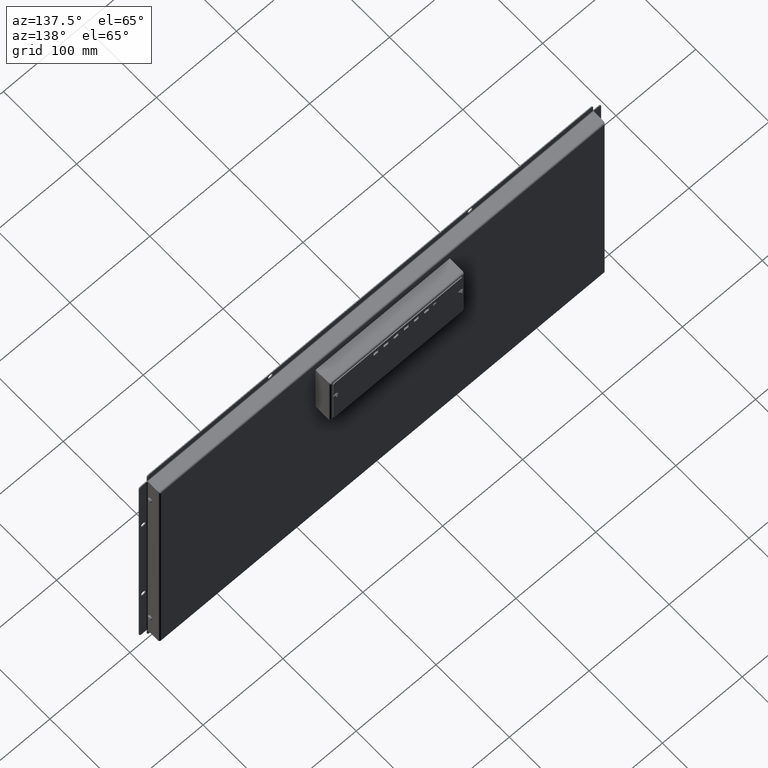
[diagram: clean part render]
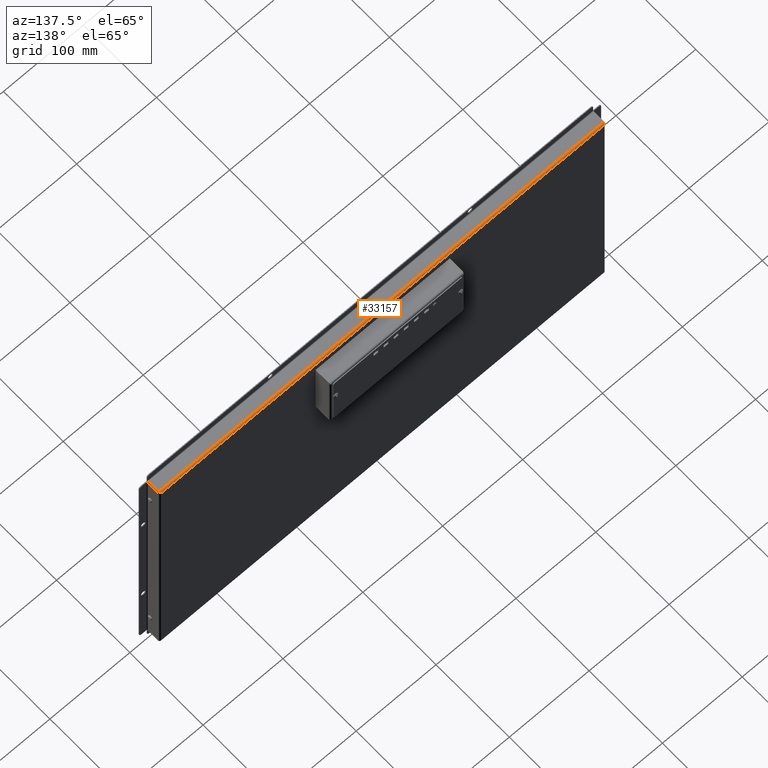
[diagram: same view with one face highlighted and labeled with its STEP entity id]
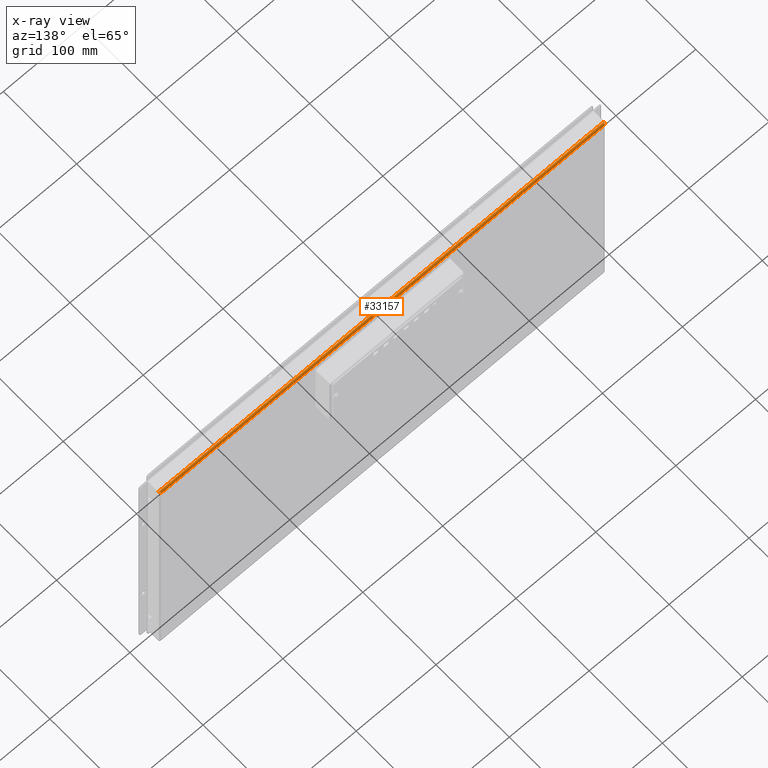
[diagram: x-ray of the same camera — body ghosted, the highlighted face saturated]
A machine part, auxiliary view. The second image highlights one B-rep face of the part: STEP entity #33157.
The next image is the same camera in x-ray: the body ghosted, the highlighted face saturated — about 0% of this face is hidden behind the body in this view.
In plain terms, the highlighted cylindrical surface (edge-blend (fillet) strip) has radius 2 mm, axis along (1, -0, -0).
Its self-contained STEP definition (entity closure, byte-faithful):
#369=B_SPLINE_CURVE_WITH_KNOTS('',3,(#48829,#48830,#48831,#48832,#48833,
#48834,#48835),.UNSPECIFIED.,.F.,.F.,(4,3,4),(-1.,-0.571428571428569,0.),
 .UNSPECIFIED.);
#370=B_SPLINE_CURVE_WITH_KNOTS('',3,(#48838,#48839,#48840,#48841,#48842,
#48843,#48844),.UNSPECIFIED.,.F.,.F.,(4,3,4),(-1.,-0.571428571428571,0.),
 .UNSPECIFIED.);
#786=CYLINDRICAL_SURFACE('',#35670,2.00000000000001);
#1754=FACE_OUTER_BOUND('',#3659,.T.);
#3659=EDGE_LOOP('',(#22094,#22095,#22096,#22097));
#5962=LINE('',#48836,#9115);
#5963=LINE('',#48845,#9116);
#9115=VECTOR('',#39506,10.);
#9116=VECTOR('',#39507,10.);
#13565=VERTEX_POINT('',#48747);
#13585=VERTEX_POINT('',#48827);
#13586=VERTEX_POINT('',#48828);
#13587=VERTEX_POINT('',#48837);
#16929=EDGE_CURVE('',#13585,#13586,#369,.T.);
#16930=EDGE_CURVE('',#13565,#13585,#5962,.T.);
#16931=EDGE_CURVE('',#13565,#13587,#370,.T.);
#16932=EDGE_CURVE('',#13586,#13587,#5963,.T.);
#22094=ORIENTED_EDGE('',*,*,#16929,.F.);
#22095=ORIENTED_EDGE('',*,*,#16930,.F.);
#22096=ORIENTED_EDGE('',*,*,#16931,.T.);
#22097=ORIENTED_EDGE('',*,*,#16932,.F.);
#33157=ADVANCED_FACE('',(#1754),#786,.T.);
#35670=AXIS2_PLACEMENT_3D('',#48826,#39504,#39505);
#39504=DIRECTION('center_axis',(-1.,-3.83386368215881E-16,0.));
#39505=DIRECTION('ref_axis',(0.,3.39652504009254E-14,1.));
#39506=DIRECTION('',(1.,3.84474391424399E-16,-2.50587048754145E-32));
#39507=DIRECTION('',(-1.,-3.83386368215881E-16,0.));
#48747=CARTESIAN_POINT('',(-279.,162.6,-1.0000000000001));
#48826=CARTESIAN_POINT('Origin',(-138.5,160.6,-1.));
#48827=CARTESIAN_POINT('',(279.,162.6,-1.00000000000017));
#48828=CARTESIAN_POINT('',(277.,160.6,1.));
#48829=CARTESIAN_POINT('Ctrl Pts',(279.,162.6,-1.00000000000017));
#48830=CARTESIAN_POINT('Ctrl Pts',(278.714285714299,162.6,-0.551201049486791));
#48831=CARTESIAN_POINT('Ctrl Pts',(278.428571428582,162.443270290567,-0.10164678766964));
#48832=CARTESIAN_POINT('Ctrl Pts',(278.142857142865,162.163443340366,0.247489728209969));
#48833=CARTESIAN_POINT('Ctrl Pts',(277.76190476191,161.790340740097,0.71300508271611));
#48834=CARTESIAN_POINT('Ctrl Pts',(277.380952380954,161.198398600685,0.999999999999957));
#48835=CARTESIAN_POINT('Ctrl Pts',(277.,160.6,1.00000000000001));
#48836=CARTESIAN_POINT('',(-8.45362773576322E-15,162.6,-1.00000000000009));
#48837=CARTESIAN_POINT('',(-277.,160.6,1.));
#48838=CARTESIAN_POINT('Ctrl Pts',(-279.,162.6,-1.0000000000001));
#48839=CARTESIAN_POINT('Ctrl Pts',(-278.714285714289,162.6,-0.551201049487491));
#48840=CARTESIAN_POINT('Ctrl Pts',(-278.428571428573,162.443270290567,-0.10164678766994));
#48841=CARTESIAN_POINT('Ctrl Pts',(-278.142857142856,162.163443340365,0.247489728209854));
#48842=CARTESIAN_POINT('Ctrl Pts',(-277.761904761899,161.790340740097,0.713005082716246));
#48843=CARTESIAN_POINT('Ctrl Pts',(-277.380952380941,161.198398600684,0.999999999999958));
#48844=CARTESIAN_POINT('Ctrl Pts',(-277.,160.6,1.00000000000001));
#48845=CARTESIAN_POINT('',(139.,160.6,1.));